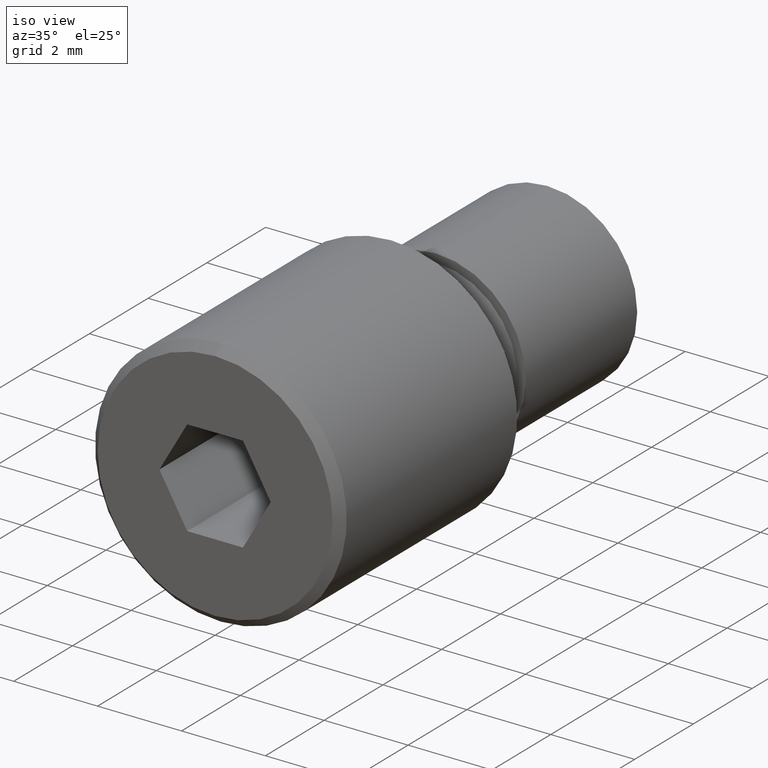
[diagram: clean part render]
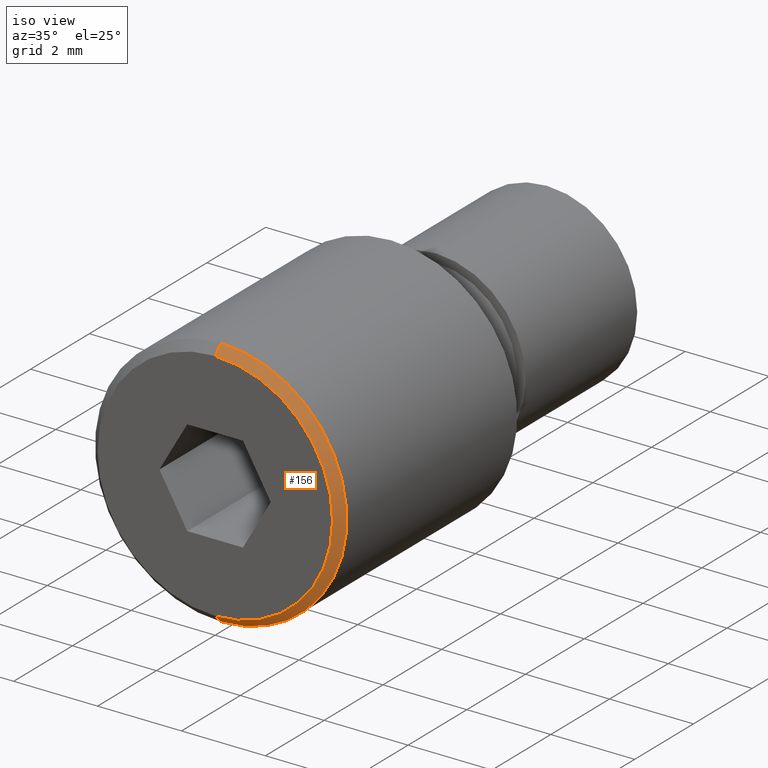
[diagram: same view with one face highlighted and labeled with its STEP entity id]
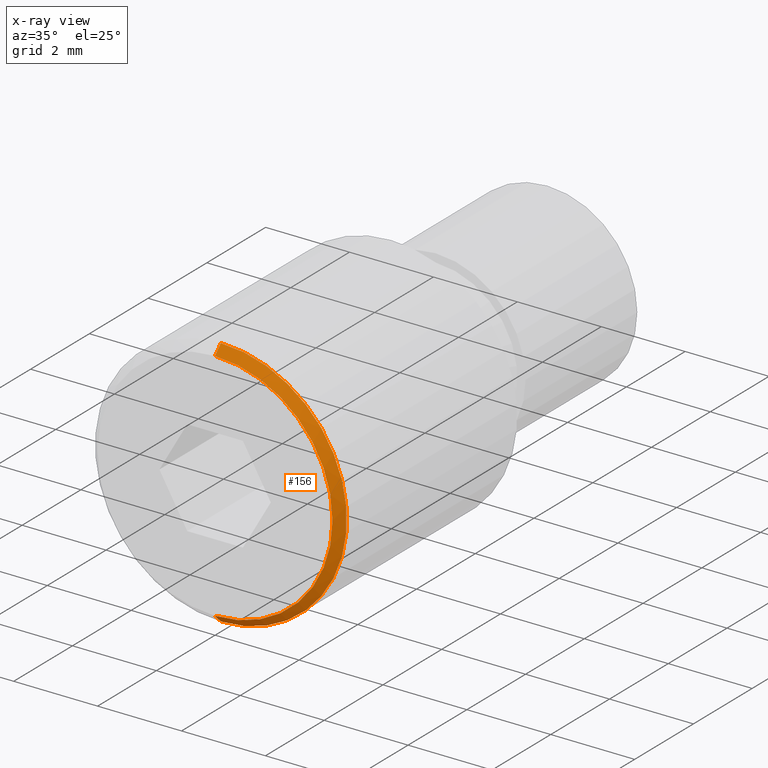
[diagram: x-ray of the same camera — body ghosted, the highlighted face saturated]
A machine part, iso view. The second image highlights one B-rep face of the part: STEP entity #156.
The next image is the same camera in x-ray: the body ghosted, the highlighted face saturated — about 0% of this face is hidden behind the body in this view.
In plain terms, the highlighted conical surface has half-angle 45 deg.
Its self-contained STEP definition (entity closure, byte-faithful):
#34 = DIRECTION ( 'NONE',  ( 0.0000000000000000000, 0.0000000000000000000, 1.000000000000000000 ) ) ;
#48 = VECTOR ( 'NONE', #196, 1000.000000000000100 ) ;
#60 = CARTESIAN_POINT ( 'NONE',  ( 0.0000000000000000000, 0.0000000000000000000, 0.0000000000000000000 ) ) ;
#75 = ORIENTED_EDGE ( 'NONE', *, *, #769, .F. ) ;
#84 = LINE ( 'NONE', #330, #48 ) ;
#85 = VERTEX_POINT ( 'NONE', #782 ) ;
#138 = EDGE_CURVE ( 'NONE', #648, #85, #84, .T. ) ;
#139 = DIRECTION ( 'NONE',  ( 8.659560562354932900E-017, 0.7071067811865474600, -0.7071067811865474600 ) ) ;
#147 = AXIS2_PLACEMENT_3D ( 'NONE', #321, #549, #34 ) ;
#156 = ADVANCED_FACE ( 'NONE', ( #829 ), #163, .T. ) ;
#163 = CONICAL_SURFACE ( 'NONE', #147, 3.000000000000000400, 0.7853981633974482800 ) ;
#196 = DIRECTION ( 'NONE',  ( 0.0000000000000000000, 0.7071067811865474600, 0.7071067811865474600 ) ) ;
#203 = VERTEX_POINT ( 'NONE', #920 ) ;
#213 = DIRECTION ( 'NONE',  ( -0.0000000000000000000, -1.000000000000000000, -0.0000000000000000000 ) ) ;
#281 = DIRECTION ( 'NONE',  ( 0.0000000000000000000, 0.0000000000000000000, 1.000000000000000000 ) ) ;
#282 = EDGE_CURVE ( 'NONE', #85, #534, #846, .T. ) ;
#295 = VECTOR ( 'NONE', #139, 1000.000000000000100 ) ;
#312 = CARTESIAN_POINT ( 'NONE',  ( 0.0000000000000000000, 0.0000000000000000000, 2.799999999999999800 ) ) ;
#321 = CARTESIAN_POINT ( 'NONE',  ( 0.0000000000000000000, 0.2000000000000005100, 0.0000000000000000000 ) ) ;
#330 = CARTESIAN_POINT ( 'NONE',  ( 0.0000000000000000000, 0.2000000000000005100, 3.000000000000000400 ) ) ;
#375 = CARTESIAN_POINT ( 'NONE',  ( 0.0000000000000000000, 0.2000000000000005100, -3.000000000000000400 ) ) ;
#428 = EDGE_CURVE ( 'NONE', #203, #534, #436, .T. ) ;
#436 = LINE ( 'NONE', #505, #295 ) ;
#453 = AXIS2_PLACEMENT_3D ( 'NONE', #856, #785, #719 ) ;
#505 = CARTESIAN_POINT ( 'NONE',  ( 3.673940397442060400E-016, 0.2000000000000005100, -3.000000000000000400 ) ) ;
#514 = EDGE_LOOP ( 'NONE', ( #75, #754, #568, #928 ) ) ;
#534 = VERTEX_POINT ( 'NONE', #375 ) ;
#549 = DIRECTION ( 'NONE',  ( -0.0000000000000000000, 1.000000000000000000, -0.0000000000000000000 ) ) ;
#568 = ORIENTED_EDGE ( 'NONE', *, *, #282, .F. ) ;
#614 = AXIS2_PLACEMENT_3D ( 'NONE', #60, #213, #281 ) ;
#648 = VERTEX_POINT ( 'NONE', #312 ) ;
#719 = DIRECTION ( 'NONE',  ( 0.0000000000000000000, 0.0000000000000000000, 1.000000000000000000 ) ) ;
#730 = CIRCLE ( 'NONE', #614, 2.799999999999999800 ) ;
#754 = ORIENTED_EDGE ( 'NONE', *, *, #428, .T. ) ;
#769 = EDGE_CURVE ( 'NONE', #203, #648, #730, .T. ) ;
#782 = CARTESIAN_POINT ( 'NONE',  ( 3.673940397442060400E-016, 0.2000000000000005100, 3.000000000000000400 ) ) ;
#785 = DIRECTION ( 'NONE',  ( -0.0000000000000000000, 1.000000000000000000, -0.0000000000000000000 ) ) ;
#829 = FACE_OUTER_BOUND ( 'NONE', #514, .T. ) ;
#846 = CIRCLE ( 'NONE', #453, 3.000000000000000400 ) ;
#856 = CARTESIAN_POINT ( 'NONE',  ( 0.0000000000000000000, 0.2000000000000005100, 0.0000000000000000000 ) ) ;
#920 = CARTESIAN_POINT ( 'NONE',  ( 3.551475717527324300E-016, 0.0000000000000000000, -2.799999999999999800 ) ) ;
#928 = ORIENTED_EDGE ( 'NONE', *, *, #138, .F. ) ;